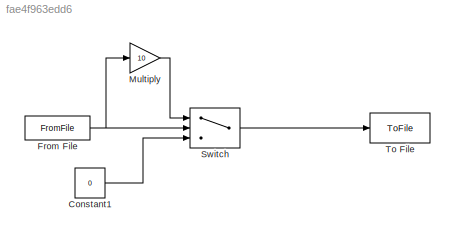
MODEL slx_fae4f963edd6
KIND model
CONFIG AbsTol = auto
CONFIG EnableMultiTasking = off
CONFIG FixedStep = auto
CONFIG MaxStep = auto
CONFIG MinStep = auto
CONFIG RelTol = 1e-3
CONFIG SampleTimeConstraint = Unconstrained
CONFIG SolverName = VariableStepAuto
CONFIG StartTime = 0.0
CONFIG StopTime = 10.0
BLOCK [Constant] Constant1
  Value = 0
BLOCK [FromFile] From File
  FileName = inputData.mat
  SampleTime = 0
BLOCK [Gain] Multiply
  Gain = 10
BLOCK [Switch] Switch
  Criteria = u2 > Threshold
  InputSameDT = off
  SaturateOnIntegerOverflow = off
  Threshold = 0.5
BLOCK [ToFile] To File
  Filename = Output.mat
  SaveFormat = Timeseries
LINE Constant1:1 -> Switch:3
NET From File:1 -> Multiply:1, Switch:2
LINE Multiply:1 -> Switch:1
LINE Switch:1 -> To File:1
note: NET lines group one-source signal fan-out (src -> all destinations, sorted); 1:1 wires keep LINE
